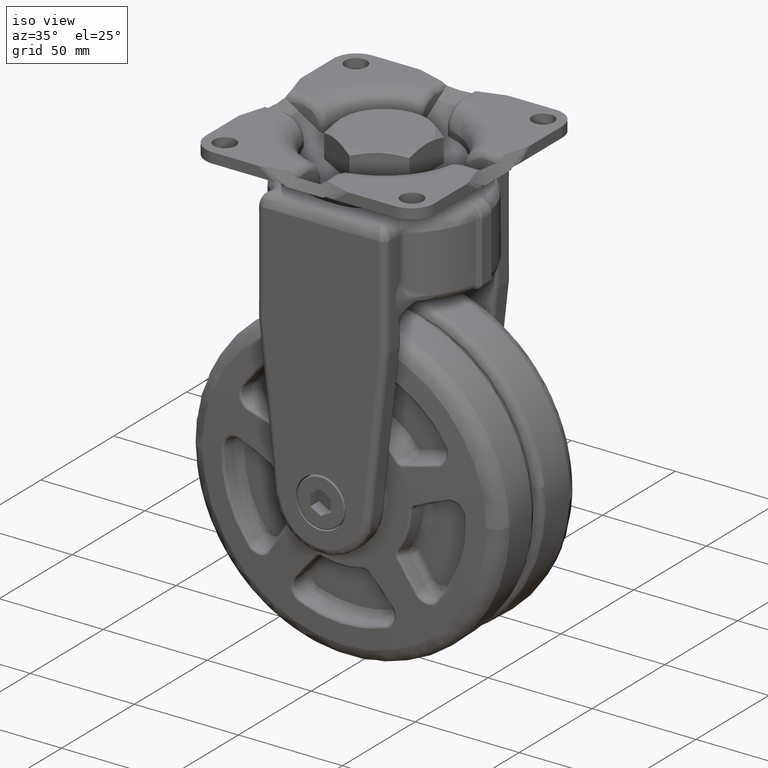
[diagram: clean part render]
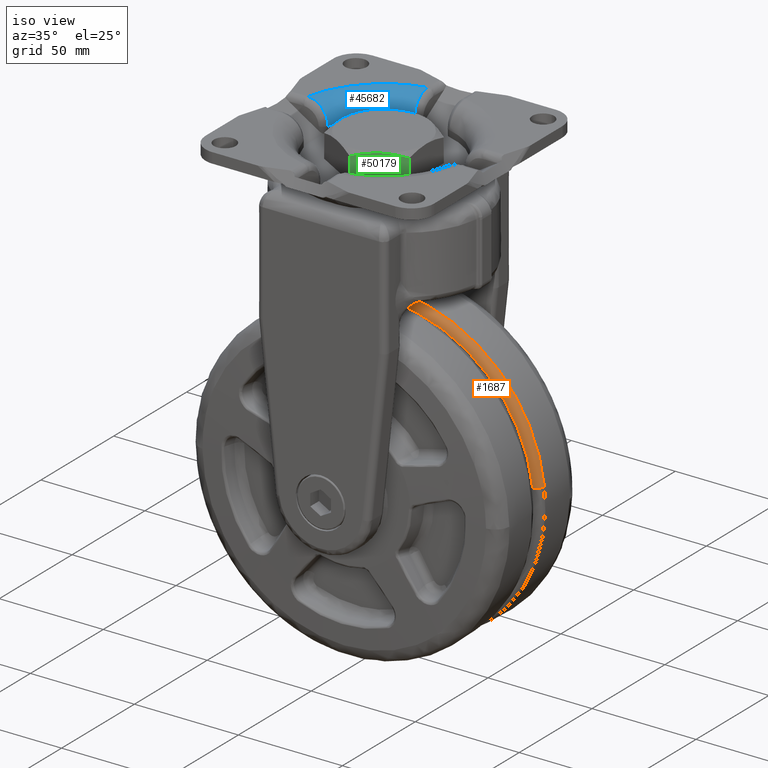
[diagram: same view with three faces highlighted in distinct colors, each labeled with its STEP entity id]
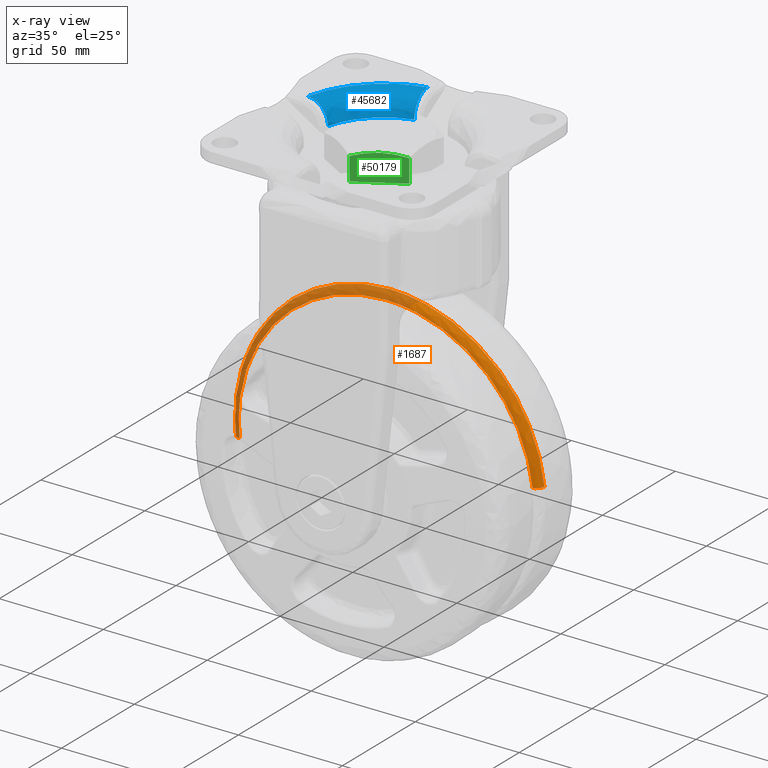
[diagram: x-ray of the same camera — body ghosted, the three highlighted faces saturated]
A machine part, iso view with three faces highlighted in distinct colors.
The next image is the same camera in x-ray (body ghosted, the three faces saturated) — at least one of them is partly hidden behind the body in this view.
Their STEP definitions:

[orange] entity #1687 — the highlighted face is a freeform B-spline surface patch.
#990=CARTESIAN_POINT('',(-73.921260694730165,4.595436225452094,-135.396126492316510));
#991=VERTEX_POINT('',#990);
#1005=CARTESIAN_POINT('',(0.0,4.595436627971846,-52.603439322120607));
#1006=VERTEX_POINT('',#1005);
#1007=CARTESIAN_POINT('',(0.0,4.595436627971846,-52.603439322120607));
#1008=CARTESIAN_POINT('',(-74.396555193706376,4.595436449012346,-52.603439495289109));
#1009=CARTESIAN_POINT('',(-74.396556901290197,4.595436247096291,-127.000000379517500));
#1010=CARTESIAN_POINT('',(-74.396556997954846,4.595436235666022,-131.211516468181120));
#1011=CARTESIAN_POINT('',(-73.921260694730165,4.595436225452094,-135.396126492316480));
#1019=(BOUNDED_CURVE()B_SPLINE_CURVE(2,(#1007,#1008,#1009,#1010,#1011),.UNSPECIFIED.,.F.,.U.)B_SPLINE_CURVE_WITH_KNOTS((3,2,3),(0.500000000000000,0.750000000000000,0.769555761623603),.UNSPECIFIED.)CURVE()GEOMETRIC_REPRESENTATION_ITEM()RATIONAL_B_SPLINE_CURVE((1.0,0.707106781186548,1.0,0.977089000126858,0.957762336670336))REPRESENTATION_ITEM(''));
#1020=EDGE_CURVE('',#1006,#991,#1019,.T.);
#1137=CARTESIAN_POINT('',(73.921260693340358,4.595436225623100,-118.603873507841400));
#1138=VERTEX_POINT('',#1137);
#1139=CARTESIAN_POINT('',(73.921260693340358,4.595436225623100,-118.603873507841400));
#1140=CARTESIAN_POINT('',(66.424797368416037,4.595436427453651,-52.603439128090869));
#1141=CARTESIAN_POINT('',(0.0,4.595436627971846,-52.603439322120607));
#1149=(BOUNDED_CURVE()B_SPLINE_CURVE(2,(#1139,#1140,#1141),.UNSPECIFIED.,.F.,.U.)B_SPLINE_CURVE_WITH_KNOTS((3,3),(0.269555761679673,0.500000000000000),.UNSPECIFIED.)CURVE()GEOMETRIC_REPRESENTATION_ITEM()RATIONAL_B_SPLINE_CURVE((0.957762336559508,0.730017781125381,1.0))REPRESENTATION_ITEM(''));
#1150=EDGE_CURVE('',#1138,#1006,#1149,.T.);
#1594=CARTESIAN_POINT('',(74.174947620278431,4.823687737264135,-120.668852603930470));
#1595=CARTESIAN_POINT('',(74.058237136319462,4.823687737264133,-119.641308995760710));
#1596=CARTESIAN_POINT('',(65.541886269384221,4.823687737264134,-44.661567661408462));
#1597=CARTESIAN_POINT('',(-8.398273034603678,4.823687737264134,-53.059840696012138));
#1598=CARTESIAN_POINT('',(-82.338432338591545,4.823687737264134,-61.458113730615828));
#1599=CARTESIAN_POINT('',(-73.822081471639436,4.823687737264133,-136.437855065116370));
#1600=CARTESIAN_POINT('',(-73.705370987663997,4.823687737264133,-137.465398673431000));
#1601=CARTESIAN_POINT('',(73.996494096928529,1.274201318212701,-120.684084371473620));
#1602=CARTESIAN_POINT('',(73.880064400455666,1.274201318212701,-119.659012875292550));
#1603=CARTESIAN_POINT('',(65.384202564750552,1.274201318212701,-44.859661274270188));
#1604=CARTESIAN_POINT('',(-8.378068080489630,1.274201318212701,-53.237729354759828));
#1605=CARTESIAN_POINT('',(-82.140338725729805,1.274201318212701,-61.615797435249462));
#1606=CARTESIAN_POINT('',(-73.644476890007937,1.274201318212701,-136.415149036419760));
#1607=CARTESIAN_POINT('',(-73.528047193518660,1.274201318212701,-137.440220532745400));
#1608=CARTESIAN_POINT('',(70.461631879177034,1.507552530362791,-120.985799902705930));
#1609=CARTESIAN_POINT('',(70.350764107496815,1.507552530362792,-120.009696760317450));
#1610=CARTESIAN_POINT('',(62.260755297354422,1.507552530362792,-48.783560419202004));
#1611=CARTESIAN_POINT('',(-7.977842141721788,1.507552530362791,-56.761402560923777));
#1612=CARTESIAN_POINT('',(-78.216439580798010,1.507552530362792,-64.739244702645564));
#1613=CARTESIAN_POINT('',(-70.126430770639601,1.507552530362792,-135.965381043901770));
#1614=CARTESIAN_POINT('',(-70.015562998943736,1.507552530362792,-136.941484186428080));
#1622=(BOUNDED_SURFACE()B_SPLINE_SURFACE(2,2,((#1594,#1601,#1608),(#1595,#1602,#1609),(#1596,#1603,#1610),(#1597,#1604,#1611),(#1598,#1605,#1612),(#1599,#1606,#1613),(#1600,#1607,#1614)),.UNSPECIFIED.,.F.,.F.,.U.)B_SPLINE_SURFACE_WITH_KNOTS((3,1,2,1,3),(3,3),(0.0,2.465915310193955,125.761680821197500,249.057446332201100,251.523361642748800),(0.0,5.863136829583783),.UNSPECIFIED.)GEOMETRIC_REPRESENTATION_ITEM()RATIONAL_B_SPLINE_SURFACE(((0.926866325206056,0.649056822000215,0.923163115114401),(0.921499741418112,0.645298763557833,0.917817973023820),(0.647803968230136,0.453637782994334,0.645215726401380),(0.916133157630168,0.641540705115450,0.912472830933240),(0.647803968230136,0.453637782994334,0.645215726401380),(0.921499741418882,0.645298763558372,0.917817973024587),(0.926866325207596,0.649056822001294,0.923163115115935)))REPRESENTATION_ITEM('')SURFACE());
#1623=CARTESIAN_POINT('',(0.0,1.500000000000000,-56.079979000000101));
#1624=VERTEX_POINT('',#1623);
#1625=CARTESIAN_POINT('',(-70.466935019660752,1.500000000000001,-135.003777186811310));
#1626=VERTEX_POINT('',#1625);
#1627=CARTESIAN_POINT('',(0.0,1.500000000000000,-56.079979000000101));
#1628=CARTESIAN_POINT('',(-70.920021005256146,1.500000000000000,-56.079979000597127));
#1629=CARTESIAN_POINT('',(-70.920021011143234,1.500000000000001,-127.000000001265700));
#1630=CARTESIAN_POINT('',(-70.920021011476507,1.500000000000001,-131.014712971299640));
#1631=CARTESIAN_POINT('',(-70.466935019660752,1.500000000000001,-135.003777186811250));
#1639=(BOUNDED_CURVE()B_SPLINE_CURVE(2,(#1627,#1628,#1629,#1630,#1631),.UNSPECIFIED.,.F.,.U.)B_SPLINE_CURVE_WITH_KNOTS((3,2,3),(0.500000000000000,0.750000000000000,0.769555763443985),.UNSPECIFIED.)CURVE()GEOMETRIC_REPRESENTATION_ITEM()RATIONAL_B_SPLINE_CURVE((1.0,0.707106781186547,1.0,0.977088997994148,0.957762333072224))REPRESENTATION_ITEM(''));
#1640=EDGE_CURVE('',#1624,#1626,#1639,.T.);
#1641=ORIENTED_EDGE('',*,*,#1640,.F.);
#1642=CARTESIAN_POINT('',(70.466935019660752,1.500000000000001,-118.996222813188790));
#1643=VERTEX_POINT('',#1642);
#1644=CARTESIAN_POINT('',(70.466935019660752,1.500000000000000,-118.996222813188710));
#1645=CARTESIAN_POINT('',(63.320780625448748,1.500000000000000,-56.079978999331438));
#1646=CARTESIAN_POINT('',(0.0,1.500000000000000,-56.079979000000101));
#1654=(BOUNDED_CURVE()B_SPLINE_CURVE(2,(#1644,#1645,#1646),.UNSPECIFIED.,.F.,.U.)B_SPLINE_CURVE_WITH_KNOTS((3,3),(0.269555763443985,0.500000000000000),.UNSPECIFIED.)CURVE()GEOMETRIC_REPRESENTATION_ITEM()RATIONAL_B_SPLINE_CURVE((0.957762333072224,0.730017783192400,1.0))REPRESENTATION_ITEM(''));
#1655=EDGE_CURVE('',#1643,#1624,#1654,.T.);
#1656=ORIENTED_EDGE('',*,*,#1655,.F.);
#1657=CARTESIAN_POINT('',(73.921260693340358,4.595436225623100,-118.603873507841370));
#1658=CARTESIAN_POINT('',(73.563348500256311,1.500000210627118,-118.644525899441900));
#1659=CARTESIAN_POINT('',(70.466935019660752,1.500000000000001,-118.996222813188790));
#1667=(BOUNDED_CURVE()B_SPLINE_CURVE(2,(#1657,#1658,#1659),.UNSPECIFIED.,.F.,.U.)B_SPLINE_CURVE_WITH_KNOTS((3,3),(-1.717725214538490,-0.292790554274885),.UNSPECIFIED.)CURVE()GEOMETRIC_REPRESENTATION_ITEM()RATIONAL_B_SPLINE_CURVE((0.892317875494208,0.665189710161341,0.888990101536619))REPRESENTATION_ITEM(''));
#1668=EDGE_CURVE('',#1138,#1643,#1667,.T.);
#1669=ORIENTED_EDGE('',*,*,#1668,.F.);
#1670=ORIENTED_EDGE('',*,*,#1150,.T.);
#1671=ORIENTED_EDGE('',*,*,#1020,.T.);
#1672=CARTESIAN_POINT('',(-73.921260694730165,4.595436225452094,-135.396126492316430));
#1673=CARTESIAN_POINT('',(-73.563348500944386,1.500000210545670,-135.355474100636230));
#1674=CARTESIAN_POINT('',(-70.466935019660752,1.500000000000001,-135.003777186811280));
#1682=(BOUNDED_CURVE()B_SPLINE_CURVE(2,(#1672,#1673,#1674),.UNSPECIFIED.,.F.,.U.)B_SPLINE_CURVE_WITH_KNOTS((3,3),(-1.717725214535982,-0.292790554274883),.UNSPECIFIED.)CURVE()GEOMETRIC_REPRESENTATION_ITEM()RATIONAL_B_SPLINE_CURVE((0.892317875493409,0.665189710161735,0.888990101536619))REPRESENTATION_ITEM(''));
#1683=EDGE_CURVE('',#991,#1626,#1682,.T.);
#1684=ORIENTED_EDGE('',*,*,#1683,.T.);
#1685=EDGE_LOOP('',(#1641,#1656,#1669,#1670,#1671,#1684));
#1686=FACE_OUTER_BOUND('',#1685,.T.);
#1687=ADVANCED_FACE('',(#1686),#1622,.T.);

[blue] entity #45682 — the highlighted face is a freeform B-spline surface patch.
#36539=CARTESIAN_POINT('',(-8.500000000000000,32.920358442763103,8.0));
#36540=VERTEX_POINT('',#36539);
#36546=CARTESIAN_POINT('',(-32.920358442763103,8.500000000000000,8.0));
#36547=VERTEX_POINT('',#36546);
#36548=CARTESIAN_POINT('',(-8.499999999999998,32.920358442763103,8.0));
#36549=CARTESIAN_POINT('',(-27.908981077443535,27.908981077443524,8.0));
#36550=CARTESIAN_POINT('',(-32.920358442763067,8.499999999999984,8.0));
#36558=(BOUNDED_CURVE()B_SPLINE_CURVE(2,(#36548,#36549,#36550),.UNSPECIFIED.,.F.,.U.)CURVE()GEOMETRIC_REPRESENTATION_ITEM()QUASI_UNIFORM_CURVE()RATIONAL_B_SPLINE_CURVE((1.0,0.861429892178094,1.0))REPRESENTATION_ITEM(''));
#36559=EDGE_CURVE('',#36540,#36547,#36558,.T.);
#43428=CARTESIAN_POINT('',(-9.250000000000000,43.016711868761057,18.0));
#43429=VERTEX_POINT('',#43428);
#43443=CARTESIAN_POINT('',(-8.500000000000000,32.920358442763103,8.0));
#43444=CARTESIAN_POINT('',(-8.500000000000004,32.920358442763110,8.332148189115163));
#43445=CARTESIAN_POINT('',(-8.501473376082332,32.937024603135299,8.661477055654936));
#43446=CARTESIAN_POINT('',(-8.507247567400183,33.002519067397650,9.314694328855490));
#43447=CARTESIAN_POINT('',(-8.511548628395879,33.051350708324179,9.638582171731096));
#43448=CARTESIAN_POINT('',(-8.522915063830757,33.180984002512993,10.280950576607550));
#43449=CARTESIAN_POINT('',(-8.529980396563980,33.261784349384889,10.599431358520270));
#43450=CARTESIAN_POINT('',(-8.540532879837658,33.383228630104540,10.994075232866740));
#43451=CARTESIAN_POINT('',(-8.542729549921141,33.408542067521623,11.072830749618070));
#43452=CARTESIAN_POINT('',(-8.547295612467162,33.461239568677541,11.229991658315271));
#43453=CARTESIAN_POINT('',(-8.549665750683285,33.488632418421822,11.308410642841180));
#43454=CARTESIAN_POINT('',(-8.556993307204033,33.573458422335278,11.541831779121100));
#43455=CARTESIAN_POINT('',(-8.562180157122102,33.633680355776043,11.695439953702561));
#43456=CARTESIAN_POINT('',(-8.578609098149741,33.825142218831559,12.150366566455601));
#43457=CARTESIAN_POINT('',(-8.602826466574642,34.109162243256840,12.741235980198240));
#43458=CARTESIAN_POINT('',(-8.631364089315440,34.449653162291277,13.301265365084770));
#43459=CARTESIAN_POINT('',(-8.654313640145455,34.726439559008021,13.709594648647480));
#43460=CARTESIAN_POINT('',(-8.662221618081523,34.822277754960162,13.843752146343411));
#43461=CARTESIAN_POINT('',(-8.674465258087087,34.971489393466300,14.042011277713900));
#43462=CARTESIAN_POINT('',(-8.678615937326823,35.022207647353603,14.107689920387051));
#43463=CARTESIAN_POINT('',(-8.687008304907174,35.125045943372022,14.237497368170780));
#43464=CARTESIAN_POINT('',(-8.691250176130373,35.177167735077312,14.301634564816011));
#43465=CARTESIAN_POINT('',(-8.712680380629974,35.441249334759313,14.618532599306739));
#43466=CARTESIAN_POINT('',(-8.730529136521117,35.663601017600648,14.859958044317461));
#43467=CARTESIAN_POINT('',(-8.767477261877117,36.129870440420817,15.319295011846140));
#43468=CARTESIAN_POINT('',(-8.786576889740214,36.373789579078213,15.537204994280740));
#43469=CARTESIAN_POINT('',(-8.825917926273965,36.883223054951543,15.949488660918480));
#43470=CARTESIAN_POINT('',(-8.846159390997618,37.148735752451557,16.143864120086750));
#43471=CARTESIAN_POINT('',(-8.877329415850904,37.563695972021272,16.417242186611549));
#43472=CARTESIAN_POINT('',(-8.887785437680947,37.703887019972768,16.504720676895921));
#43473=CARTESIAN_POINT('',(-8.908768621434653,37.987297195335692,16.672132375232259));
#43474=CARTESIAN_POINT('',(-8.919303593477759,38.130620201475800,16.752133984346731));
#43475=CARTESIAN_POINT('',(-8.951022792750907,38.565369389814663,16.981196826951301));
#43476=CARTESIAN_POINT('',(-8.993617938576579,39.157760113555092,17.257485858340399));
#43477=CARTESIAN_POINT('',(-9.036697013419140,39.775372854582173,17.476060153332931));
#43478=CARTESIAN_POINT('',(-9.069162439399767,40.248227465480497,17.617925114989049));
#43479=CARTESIAN_POINT('',(-9.080017727052255,40.407563424528597,17.661555732258890));
#43480=CARTESIAN_POINT('',(-9.101748715435829,40.729076235723902,17.741184394449281));
#43481=CARTESIAN_POINT('',(-9.112562381945006,40.890333664025100,17.776960316360750));
#43482=CARTESIAN_POINT('',(-9.144847804350313,41.375587656970517,17.872346239152030));
#43483=CARTESIAN_POINT('',(-9.166163754398987,41.701062473381711,17.920042565109782));
#43484=CARTESIAN_POINT('',(-9.208385948675044,42.355928660678792,17.983868895980532));
#43485=CARTESIAN_POINT('',(-9.229292221803606,42.685319894242753,18.0));
#43486=CARTESIAN_POINT('',(-9.250000000000000,43.016711868761057,18.0));
#43487=B_SPLINE_CURVE_WITH_KNOTS('',3,(#43443,#43444,#43445,#43446,#43447,#43448,#43449,#43450,#43451,#43452,#43453,#43454,#43455,#43456,#43457,#43458,#43459,#43460,#43461,#43462,#43463,#43464,#43465,#43466,#43467,#43468,#43469,#43470,#43471,#43472,#43473,#43474,#43475,#43476,#43477,#43478,#43479,#43480,#43481,#43482,#43483,#43484,#43485,#43486),.UNSPECIFIED.,.F.,.U.,(4,2,2,2,2,2,2,1,2,2,2,2,2,2,2,2,2,1,2,2,2,2,4),(0.0,0.062500000000002,0.125000000000003,0.187500000000005,0.203125000000005,0.218750000000005,0.250000000000005,0.312500000000005,0.375000000000005,0.406250000000005,0.421875000000005,0.437500000000005,0.500000000000004,0.562500000000003,0.625000000000003,0.656250000000003,0.687500000000003,0.750000000000003,0.812500000000002,0.843750000000002,0.875000000000002,0.937500000000001,1.0),.UNSPECIFIED.);
#43488=EDGE_CURVE('',#36540,#43429,#43487,.T.);
#45124=CARTESIAN_POINT('',(-43.016711868761000,9.250000000000000,18.0));
#45125=VERTEX_POINT('',#45124);
#45141=CARTESIAN_POINT('',(-43.016711868761000,9.250000000000000,18.0));
#45142=CARTESIAN_POINT('',(-42.685319894242738,9.229292221803611,18.000000000000011));
#45143=CARTESIAN_POINT('',(-42.355928660678728,9.208385948675049,17.983868895980532));
#45144=CARTESIAN_POINT('',(-41.701062473381661,9.166163754398990,17.920042565109782));
#45145=CARTESIAN_POINT('',(-41.375587656970467,9.144847804350313,17.872346239152030));
#45146=CARTESIAN_POINT('',(-40.890333664025057,9.112562381945002,17.776960316360739));
#45147=CARTESIAN_POINT('',(-40.729076235723852,9.101748715435830,17.741184394449270));
#45148=CARTESIAN_POINT('',(-40.407563424528568,9.080017727052262,17.661555732258901));
#45149=CARTESIAN_POINT('',(-40.248227465480461,9.069162439399770,17.617925114989060));
#45150=CARTESIAN_POINT('',(-39.775372854582123,9.036697013419138,17.476060153332931));
#45151=CARTESIAN_POINT('',(-39.157759807137253,8.993618041414617,17.257486541803921));
#45152=CARTESIAN_POINT('',(-38.565369389814627,8.951022792750914,16.981196826951312));
#45153=CARTESIAN_POINT('',(-38.130620201475750,8.919303593477764,16.752133984346731));
#45154=CARTESIAN_POINT('',(-37.987297195335671,8.908768621434660,16.672132375232248));
#45155=CARTESIAN_POINT('',(-37.703887019972711,8.887785437680950,16.504720676895921));
#45156=CARTESIAN_POINT('',(-37.563695972021200,8.877329415850909,16.417242186611539));
#45157=CARTESIAN_POINT('',(-37.148735752451522,8.846159390997627,16.143864120086761));
#45158=CARTESIAN_POINT('',(-36.883223054951522,8.825917926273965,15.949488660918471));
#45159=CARTESIAN_POINT('',(-36.373789579078156,8.786576889740219,15.537204994280740));
#45160=CARTESIAN_POINT('',(-36.129870440420767,8.767477261877119,15.319295011846140));
#45161=CARTESIAN_POINT('',(-35.663601017600591,8.730529136521117,14.859958044317461));
#45162=CARTESIAN_POINT('',(-35.441249334759263,8.712680380629982,14.618532599306731));
#45163=CARTESIAN_POINT('',(-35.177167735077248,8.691250176130378,14.301634564816011));
#45164=CARTESIAN_POINT('',(-35.125045943371973,8.687008304907176,14.237497368170780));
#45165=CARTESIAN_POINT('',(-35.022207647353547,8.678615937326825,14.107689920387051));
#45166=CARTESIAN_POINT('',(-34.971489393466250,8.674465258087087,14.042011277713900));
#45167=CARTESIAN_POINT('',(-34.822277754960112,8.662221618081524,13.843752146343400));
#45168=CARTESIAN_POINT('',(-34.726439559007957,8.654313640145460,13.709594648647480));
#45169=CARTESIAN_POINT('',(-34.449653162291227,8.631364089315442,13.301265365084760));
#45170=CARTESIAN_POINT('',(-34.109162679773739,8.602826610872580,12.741235736743951));
#45171=CARTESIAN_POINT('',(-33.825142218831523,8.578609098149743,12.150366566455601));
#45172=CARTESIAN_POINT('',(-33.633680355776022,8.562180157122109,11.695439953702561));
#45173=CARTESIAN_POINT('',(-33.573458422335243,8.556993307204039,11.541831779121100));
#45174=CARTESIAN_POINT('',(-33.488632418421773,8.549665750683287,11.308410642841180));
#45175=CARTESIAN_POINT('',(-33.461239568677513,8.547295612467167,11.229991658315271));
#45176=CARTESIAN_POINT('',(-33.408542067521587,8.542729549921148,11.072830749618070));
#45177=CARTESIAN_POINT('',(-33.383228630104533,8.540532879837667,10.994075232866750));
#45178=CARTESIAN_POINT('',(-33.261784349384847,8.529980396563987,10.599431358520270));
#45179=CARTESIAN_POINT('',(-33.180984002512950,8.522915063830764,10.280950576607550));
#45180=CARTESIAN_POINT('',(-33.051350708324122,8.511548628395882,9.638582171731096));
#45181=CARTESIAN_POINT('',(-33.002519067397607,8.507247567400189,9.314694328855495));
#45182=CARTESIAN_POINT('',(-32.937024603135256,8.501473376082334,8.661477055654940));
#45183=CARTESIAN_POINT('',(-32.920358442763103,8.500000000000000,8.332148189115161));
#45184=CARTESIAN_POINT('',(-32.920358442763103,8.500000000000000,8.0));
#45185=B_SPLINE_CURVE_WITH_KNOTS('',3,(#45141,#45142,#45143,#45144,#45145,#45146,#45147,#45148,#45149,#45150,#45151,#45152,#45153,#45154,#45155,#45156,#45157,#45158,#45159,#45160,#45161,#45162,#45163,#45164,#45165,#45166,#45167,#45168,#45169,#45170,#45171,#45172,#45173,#45174,#45175,#45176,#45177,#45178,#45179,#45180,#45181,#45182,#45183,#45184),.UNSPECIFIED.,.F.,.U.,(4,2,2,2,2,1,2,2,2,2,2,2,2,2,2,1,2,2,2,2,2,2,4),(0.0,0.062499999999999,0.124999999999999,0.156249999999999,0.187499999999998,0.249999999999998,0.312499999999998,0.343749999999998,0.374999999999998,0.437499999999998,0.499999999999997,0.562499999999996,0.578124999999996,0.593749999999996,0.624999999999997,0.687499999999998,0.749999999999999,0.781249999999999,0.796874999999999,0.812499999999999,0.874999999999999,0.937500000000000,1.0),.UNSPECIFIED.);
#45186=EDGE_CURVE('',#45125,#36547,#45185,.T.);
#45647=CARTESIAN_POINT('',(-33.600188083446291,5.354809085466838,7.304628450873242));
#45648=CARTESIAN_POINT('',(-29.717538377635794,29.717537671148602,7.304628450873241));
#45649=CARTESIAN_POINT('',(-5.354809884257857,33.600187956144254,7.304628450873242));
#45650=CARTESIAN_POINT('',(-32.810574294456679,5.228969578831023,18.775371662260770));
#45651=CARTESIAN_POINT('',(-29.019167939365229,29.019167249480716,18.775371662260774));
#45652=CARTESIAN_POINT('',(-5.228970358850232,32.810574170146275,18.775371662260770));
#45653=CARTESIAN_POINT('',(-44.138366215055477,7.034261946363458,17.975793642220722));
#45654=CARTESIAN_POINT('',(-39.037983616772607,39.037982688706656,17.975793642220715));
#45655=CARTESIAN_POINT('',(-7.034262995682917,44.138366047827141,17.975793642220722));
#45663=(BOUNDED_SURFACE()B_SPLINE_SURFACE(2,2,((#45647,#45650,#45653),(#45648,#45651,#45654),(#45649,#45652,#45655)),.UNSPECIFIED.,.F.,.F.,.U.)B_SPLINE_SURFACE_WITH_KNOTS((3,3),(3,3),(0.0,57.994788342628098),(0.0,18.223739891148110),.UNSPECIFIED.)GEOMETRIC_REPRESENTATION_ITEM()RATIONAL_B_SPLINE_SURFACE(((0.850682249277620,0.558238911706810,0.850682238564321),(0.688695980222194,0.451939481307579,0.688695971548913),(0.850682242717296,0.558238907401762,0.850682232003997)))REPRESENTATION_ITEM('')SURFACE());
#45664=ORIENTED_EDGE('',*,*,#36559,.F.);
#45665=ORIENTED_EDGE('',*,*,#43488,.T.);
#45666=CARTESIAN_POINT('',(-43.016711868760972,9.249999999999995,18.0));
#45667=CARTESIAN_POINT('',(-37.040784292327395,37.040784292327395,18.000000000000004));
#45668=CARTESIAN_POINT('',(-9.249999999999989,43.016711868761007,18.0));
#45676=(BOUNDED_CURVE()B_SPLINE_CURVE(2,(#45666,#45667,#45668),.UNSPECIFIED.,.F.,.U.)CURVE()GEOMETRIC_REPRESENTATION_ITEM()QUASI_UNIFORM_CURVE()RATIONAL_B_SPLINE_CURVE((1.0,0.839957872561915,1.0))REPRESENTATION_ITEM(''));
#45677=EDGE_CURVE('',#45125,#43429,#45676,.T.);
#45678=ORIENTED_EDGE('',*,*,#45677,.F.);
#45679=ORIENTED_EDGE('',*,*,#45186,.T.);
#45680=EDGE_LOOP('',(#45664,#45665,#45678,#45679));
#45681=FACE_OUTER_BOUND('',#45680,.T.);
#45682=ADVANCED_FACE('',(#45681),#45663,.T.);

[green] entity #50179 — the highlighted face is a freeform B-spline surface patch.
#49710=CARTESIAN_POINT('',(10.249999913297479,-17.753521904989000,18.000006999999950));
#49711=VERTEX_POINT('',#49710);
#49937=CARTESIAN_POINT('',(20.500001684278999,-11.835680027581180,16.169020584277298));
#49938=VERTEX_POINT('',#49937);
#49955=CARTESIAN_POINT('',(10.249999913297479,-17.753521904989000,18.000006999999950));
#49956=CARTESIAN_POINT('',(10.461348490491179,-17.631498897466479,18.000007378084788));
#49957=CARTESIAN_POINT('',(10.673010513804970,-17.509295776681380,17.997490611076302));
#49958=CARTESIAN_POINT('',(11.103514375318539,-17.260744267235580,17.987231980405738));
#49959=CARTESIAN_POINT('',(11.322024724258540,-17.134587263979860,17.979335188478540));
#49960=CARTESIAN_POINT('',(11.975934657115980,-16.757052204754409,17.947742483816882));
#49961=CARTESIAN_POINT('',(12.410359997011760,-16.506236628808178,17.916122230854011));
#49962=CARTESIAN_POINT('',(13.709288819297459,-15.756299756449620,17.790956968579710));
#49963=CARTESIAN_POINT('',(14.569434940799789,-15.259694183408520,17.667036605776900));
#49964=CARTESIAN_POINT('',(17.134559598672109,-13.778718836545790,17.188522998059380));
#49965=CARTESIAN_POINT('',(18.824284098216509,-12.803155984605910,16.727593194686531));
#49966=CARTESIAN_POINT('',(20.500001684278999,-11.835680027581130,16.169020584277408));
#49967=B_SPLINE_CURVE_WITH_KNOTS('',3,(#49955,#49956,#49957,#49958,#49959,#49960,#49961,#49962,#49963,#49964,#49965,#49966),.UNSPECIFIED.,.F.,.U.,(4,2,2,2,2,4),(0.500936561740879,0.531249999999999,0.562500000000000,0.625000000000000,0.750000000000000,1.0),.UNSPECIFIED.);
#49968=EDGE_CURVE('',#49711,#49938,#49967,.T.);
#49987=CARTESIAN_POINT('',(0.000002598076356,-23.671362499999901,16.169020584277298));
#49988=VERTEX_POINT('',#49987);
#49989=CARTESIAN_POINT('',(0.000002598076356,-23.671362499999901,16.169020584277298));
#49990=CARTESIAN_POINT('',(1.673633518485896,-22.705090922560029,16.726897683764399));
#49991=CARTESIAN_POINT('',(3.359466118077916,-21.731774702860111,17.186689283908560));
#49992=CARTESIAN_POINT('',(5.914583375382275,-20.256576595850792,17.664409665946671));
#49993=CARTESIAN_POINT('',(6.770694392595165,-19.762300512889571,17.788237241541740));
#49994=CARTESIAN_POINT('',(8.492886460684748,-18.767992145756491,17.955746396778881));
#49995=CARTESIAN_POINT('',(9.358976126646375,-18.267954887663350,17.999358722435790));
#49996=CARTESIAN_POINT('',(10.236940570679170,-17.761061722304071,18.000004599533380));
#49997=CARTESIAN_POINT('',(10.243470092563721,-17.757291899916861,18.000007000944510));
#49998=CARTESIAN_POINT('',(10.249999913297479,-17.753521904989000,18.000006999999950));
#49999=B_SPLINE_CURVE_WITH_KNOTS('',3,(#49989,#49990,#49991,#49992,#49993,#49994,#49995,#49996,#49997,#49998),.UNSPECIFIED.,.F.,.U.,(4,2,2,2,4),(0.0,0.250000000000000,0.374999999999999,0.499999999999999,0.500936561740879),.UNSPECIFIED.);
#50000=EDGE_CURVE('',#49988,#49711,#49999,.T.);
#50090=CARTESIAN_POINT('',(20.500000000000000,-11.835681000000021,5.000007000000000));
#50091=VERTEX_POINT('',#50090);
#50097=CARTESIAN_POINT('',(8.526513E-014,-23.671360999999951,5.000007000000000));
#50098=VERTEX_POINT('',#50097);
#50099=CARTESIAN_POINT('',(20.500000000000000,-11.835681000000021,5.000007000000000));
#50100=CARTESIAN_POINT('',(8.526513E-014,-23.671360999999951,5.000007000000000));
#50101=QUASI_UNIFORM_CURVE('',1,(#50099,#50100),.UNSPECIFIED.,.F.,.U.);
#50102=EDGE_CURVE('',#50091,#50098,#50101,.T.);
#50154=CARTESIAN_POINT('',(8.526513E-014,-23.671360999999951,5.000007000000000));
#50155=CARTESIAN_POINT('',(0.000002598076356,-23.671362499999901,16.169020584277298));
#50156=QUASI_UNIFORM_CURVE('',1,(#50154,#50155),.UNSPECIFIED.,.F.,.U.);
#50157=EDGE_CURVE('',#50098,#49988,#50156,.T.);
#50163=CARTESIAN_POINT('',(21.523976728675741,-11.244487785948669,4.350657025196524));
#50164=CARTESIAN_POINT('',(-1.023975594249591,-24.262553559090069,4.350657025196524));
#50165=CARTESIAN_POINT('',(21.523976728675741,-11.244487785948669,18.649357323490602));
#50166=CARTESIAN_POINT('',(-1.023975594249591,-24.262553559090069,18.649357323490602));
#50167=B_SPLINE_SURFACE_WITH_KNOTS('',1,1,((#50163,#50165),(#50164,#50166)),.UNSPECIFIED.,.F.,.F.,.U.,(2,2),(2,2),(0.0,26.036132401544389),(0.0,14.298700298294071),.UNSPECIFIED.);
#50168=ORIENTED_EDGE('',*,*,#50000,.F.);
#50169=ORIENTED_EDGE('',*,*,#50157,.F.);
#50170=ORIENTED_EDGE('',*,*,#50102,.F.);
#50171=CARTESIAN_POINT('',(20.500000000000000,-11.835681000000021,5.000007000000000));
#50172=CARTESIAN_POINT('',(20.500001684278999,-11.835680027581180,16.169020584277298));
#50173=QUASI_UNIFORM_CURVE('',1,(#50171,#50172),.UNSPECIFIED.,.F.,.U.);
#50174=EDGE_CURVE('',#50091,#49938,#50173,.T.);
#50175=ORIENTED_EDGE('',*,*,#50174,.T.);
#50176=ORIENTED_EDGE('',*,*,#49968,.F.);
#50177=EDGE_LOOP('',(#50168,#50169,#50170,#50175,#50176));
#50178=FACE_OUTER_BOUND('',#50177,.T.);
#50179=ADVANCED_FACE('',(#50178),#50167,.F.);